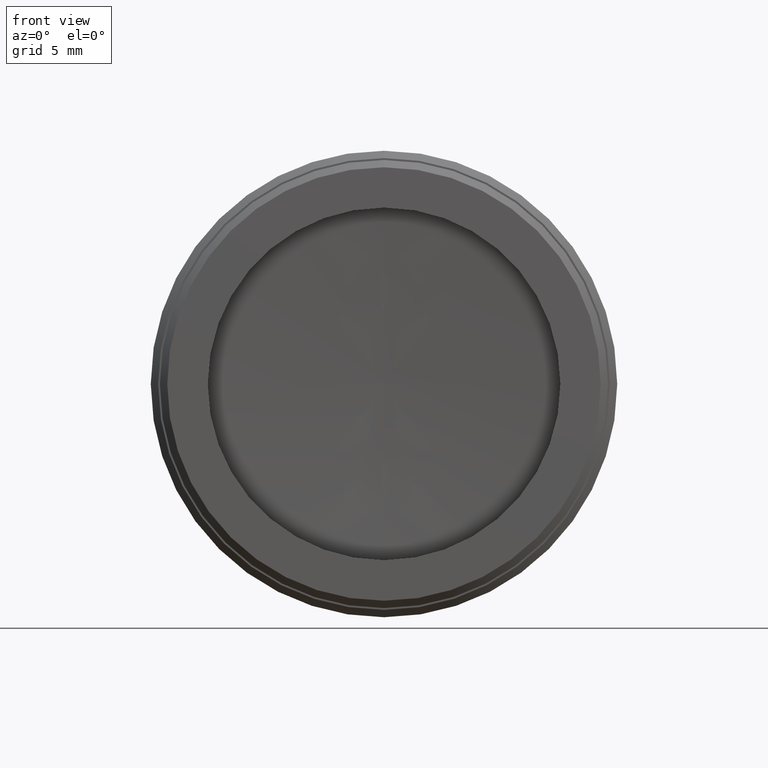
[diagram: clean part render]
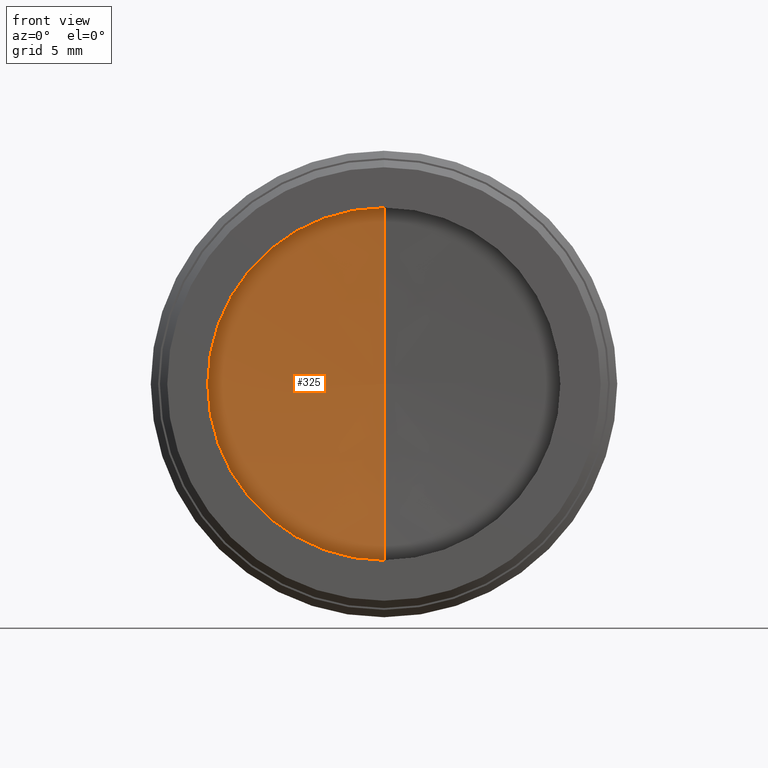
[diagram: same view with one face highlighted and labeled with its STEP entity id]
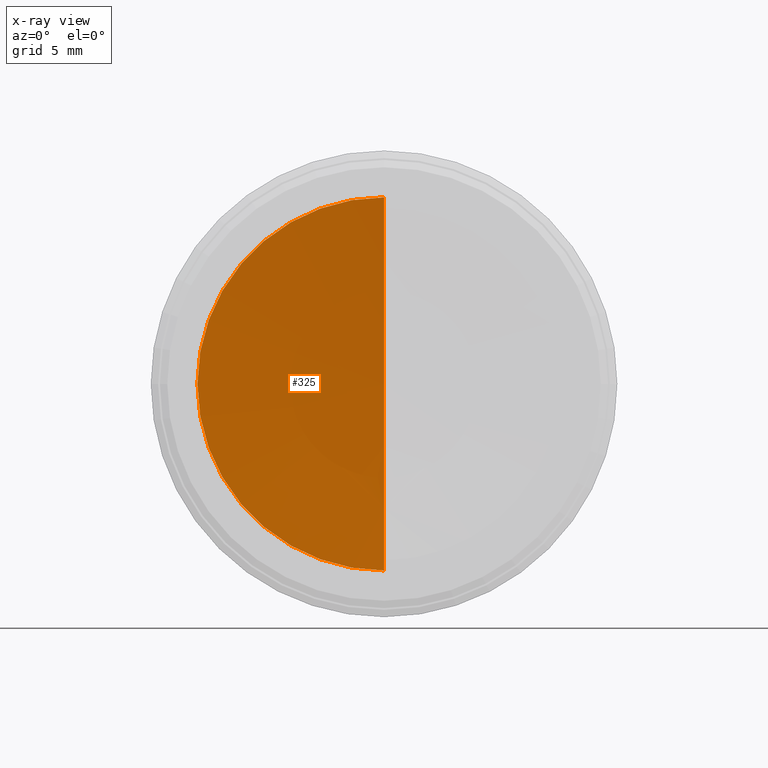
[diagram: x-ray of the same camera — body ghosted, the highlighted face saturated]
A machine part, front view. The second image highlights one B-rep face of the part: STEP entity #325.
The next image is the same camera in x-ray: the body ghosted, the highlighted face saturated — about 0% of this face is hidden behind the body in this view.
In plain terms, the highlighted spherical surface has radius 189.2 mm.
Its self-contained STEP definition (entity closure, byte-faithful):
#66 = DIRECTION ( 'NONE',  ( 0.000000000000000000, 0.000000000000000000, 1.000000000000000000 ) ) ;
#68 = ORIENTED_EDGE ( 'NONE', *, *, #255, .T. ) ;
#249 = AXIS2_PLACEMENT_3D ( 'NONE', #1218, #1442, #1320 ) ;
#255 = EDGE_CURVE ( 'NONE', #1312, #1048, #1447, .T. ) ;
#268 = DIRECTION ( 'NONE',  ( -1.224646799147352714E-16, -1.000000000000000000, 0.000000000000000000 ) ) ;
#325 = ADVANCED_FACE ( 'NONE', ( #1314 ), #1394, .F. ) ;
#418 = ORIENTED_EDGE ( 'NONE', *, *, #962, .F. ) ;
#558 = CIRCLE ( 'NONE', #873, 12.69999999999999929 ) ;
#827 = CARTESIAN_POINT ( 'NONE',  ( -62.96855859389911814, -182.6201107885695478, 19.92647029529259228 ) ) ;
#873 = AXIS2_PLACEMENT_3D ( 'NONE', #1113, #1121, #66 ) ;
#909 = CARTESIAN_POINT ( 'NONE',  ( -62.96855859389908971, 6.153165921879422129, 32.62647029529261289 ) ) ;
#922 = DIRECTION ( 'NONE',  ( 0.000000000000000000, 0.000000000000000000, 1.000000000000000000 ) ) ;
#962 = EDGE_CURVE ( 'NONE', #1312, #1048, #558, .T. ) ;
#1023 = AXIS2_PLACEMENT_3D ( 'NONE', #827, #268, #922 ) ;
#1028 = EDGE_LOOP ( 'NONE', ( #418, #68 ) ) ;
#1048 = VERTEX_POINT ( 'NONE', #909 ) ;
#1113 = CARTESIAN_POINT ( 'NONE',  ( -62.96855859389908971, 6.153165921879422129, 19.92647029529261360 ) ) ;
#1121 = DIRECTION ( 'NONE',  ( 1.224646799147353454E-16, 1.000000000000000000, 2.264485754198130300E-32 ) ) ;
#1218 = CARTESIAN_POINT ( 'NONE',  ( -62.96855859389911814, -182.6201107885695478, 19.92647029529259228 ) ) ;
#1312 = VERTEX_POINT ( 'NONE', #1361 ) ;
#1314 = FACE_OUTER_BOUND ( 'NONE', #1028, .T. ) ;
#1320 = DIRECTION ( 'NONE',  ( -1.466996597020555039E-16, 0.000000000000000000, 1.000000000000000000 ) ) ;
#1361 = CARTESIAN_POINT ( 'NONE',  ( -62.96855859389908971, 6.153165921879422129, 7.226470295292611645 ) ) ;
#1394 = SPHERICAL_SURFACE ( 'NONE', #1023, 189.2000000000000171 ) ;
#1442 = DIRECTION ( 'NONE',  ( 1.000000000000000000, -1.224646799147352961E-16, 1.224646799147353947E-16 ) ) ;
#1447 = CIRCLE ( 'NONE', #249, 189.2000000000000739 ) ;